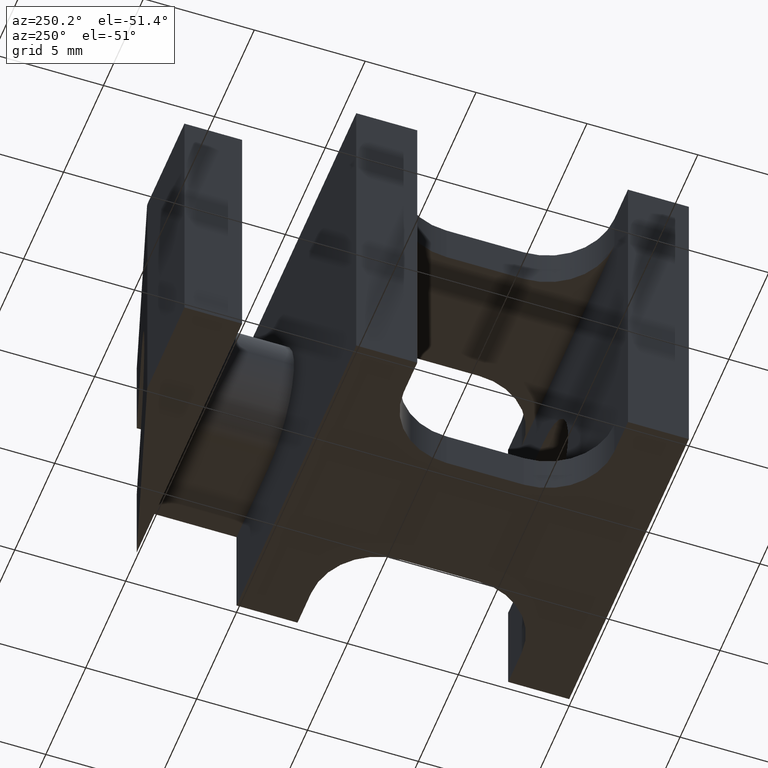
[diagram: clean part render]
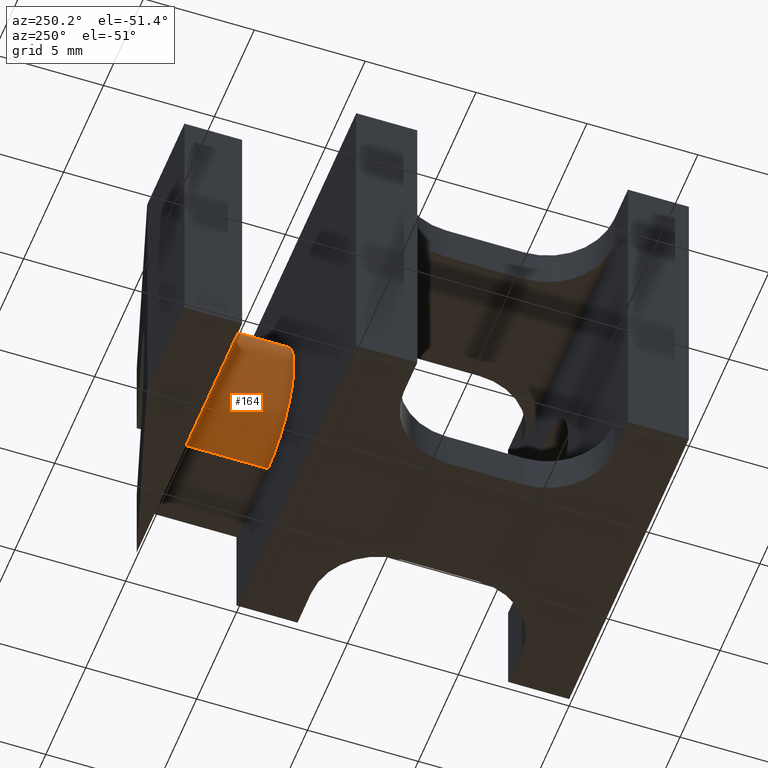
[diagram: same view with one face highlighted and labeled with its STEP entity id]
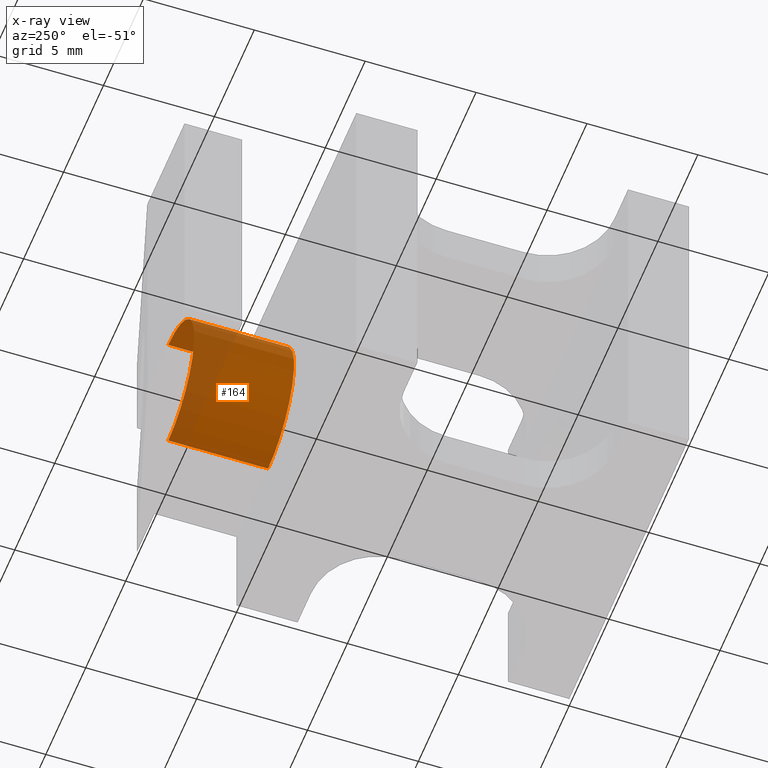
[diagram: x-ray of the same camera — body ghosted, the highlighted face saturated]
A machine part, auxiliary view. The second image highlights one B-rep face of the part: STEP entity #164.
The next image is the same camera in x-ray: the body ghosted, the highlighted face saturated — about 30% of this face is hidden behind the body in this view.
In plain terms, the highlighted cylindrical surface (partial cylindrical patch) has radius 3.25 mm, axis along (-0, -1, -0).
Its self-contained STEP definition (entity closure, byte-faithful):
#83 = EDGE_CURVE ( 'NONE', #727, #718, #1258, .T. ) ;
#85 = EDGE_CURVE ( 'NONE', #733, #727, #1003, .T. ) ;
#98 = EDGE_CURVE ( 'NONE', #718, #747, #1039, .T. ) ;
#124 = EDGE_CURVE ( 'NONE', #747, #733, #1250, .T. ) ;
#164 = ADVANCED_FACE ( 'NONE', ( #1447 ), #1443, .T. ) ;
#187 = DIRECTION ( 'NONE',  ( 0.0000000000000000000, 1.000000000000000000, 0.0000000000000000000 ) ) ;
#192 = CARTESIAN_POINT ( 'NONE',  ( 11.04999999999999500, 15.00000000000000000, 7.900000000000000400 ) ) ;
#215 = DIRECTION ( 'NONE',  ( 0.0000000000000000000, 0.0000000000000000000, -1.000000000000000000 ) ) ;
#402 = EDGE_LOOP ( 'NONE', ( #619, #638, #656, #631 ) ) ;
#619 = ORIENTED_EDGE ( 'NONE', *, *, #83, .T. ) ;
#631 = ORIENTED_EDGE ( 'NONE', *, *, #85, .T. ) ;
#638 = ORIENTED_EDGE ( 'NONE', *, *, #98, .T. ) ;
#656 = ORIENTED_EDGE ( 'NONE', *, *, #124, .T. ) ;
#718 = VERTEX_POINT ( 'NONE', #1361 ) ;
#727 = VERTEX_POINT ( 'NONE', #1355 ) ;
#733 = VERTEX_POINT ( 'NONE', #1384 ) ;
#747 = VERTEX_POINT ( 'NONE', #1366 ) ;
#985 = DIRECTION ( 'NONE',  ( -0.0000000000000000000, -1.000000000000000000, -0.0000000000000000000 ) ) ;
#997 = CARTESIAN_POINT ( 'NONE',  ( 11.04999999999999500, 19.50000000000000000, 7.900000000000000400 ) ) ;
#998 = DIRECTION ( 'NONE',  ( 0.0000000000000000000, 0.0000000000000000000, -1.000000000000000000 ) ) ;
#1003 = LINE ( 'NONE', #1004, #1253 ) ;
#1004 = CARTESIAN_POINT ( 'NONE',  ( 11.04999999999999500, 19.50000000000000000, 11.15000000000000000 ) ) ;
#1010 = DIRECTION ( 'NONE',  ( 0.0000000000000000000, 1.000000000000000000, 0.0000000000000000000 ) ) ;
#1039 = LINE ( 'NONE', #1072, #1242 ) ;
#1072 = CARTESIAN_POINT ( 'NONE',  ( 11.04999999999999500, 19.50000000000000000, 4.650000000000001200 ) ) ;
#1073 = DIRECTION ( 'NONE',  ( -0.0000000000000000000, -1.000000000000000000, -0.0000000000000000000 ) ) ;
#1208 = AXIS2_PLACEMENT_3D ( 'NONE', #192, #187, #215 ) ;
#1238 = AXIS2_PLACEMENT_3D ( 'NONE', #997, #985, #998 ) ;
#1242 = VECTOR ( 'NONE', #1073, 1000.000000000000000 ) ;
#1250 = CIRCLE ( 'NONE', #1208, 3.249999999999999600 ) ;
#1253 = VECTOR ( 'NONE', #1010, 1000.000000000000000 ) ;
#1258 = CIRCLE ( 'NONE', #1238, 3.249999999999999600 ) ;
#1314 = AXIS2_PLACEMENT_3D ( 'NONE', #1457, #1444, #1440 ) ;
#1355 = CARTESIAN_POINT ( 'NONE',  ( 11.04999999999999500, 19.50000000000000000, 11.15000000000000000 ) ) ;
#1361 = CARTESIAN_POINT ( 'NONE',  ( 11.04999999999999500, 19.50000000000000000, 4.650000000000001200 ) ) ;
#1366 = CARTESIAN_POINT ( 'NONE',  ( 11.04999999999999500, 15.00000000000000000, 4.650000000000001200 ) ) ;
#1384 = CARTESIAN_POINT ( 'NONE',  ( 11.04999999999999500, 15.00000000000000000, 11.15000000000000000 ) ) ;
#1440 = DIRECTION ( 'NONE',  ( 0.0000000000000000000, 0.0000000000000000000, -1.000000000000000000 ) ) ;
#1443 = CYLINDRICAL_SURFACE ( 'NONE', #1314, 3.249999999999999600 ) ;
#1444 = DIRECTION ( 'NONE',  ( -0.0000000000000000000, -1.000000000000000000, -0.0000000000000000000 ) ) ;
#1447 = FACE_OUTER_BOUND ( 'NONE', #402, .T. ) ;
#1457 = CARTESIAN_POINT ( 'NONE',  ( 11.04999999999999500, 19.50000000000000000, 7.900000000000000400 ) ) ;